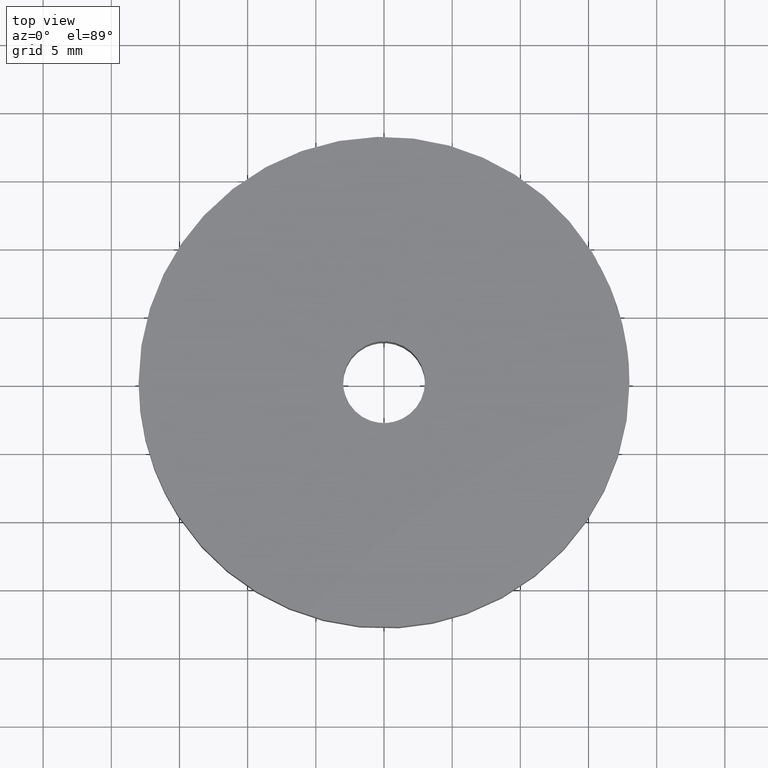
[diagram: clean part render]
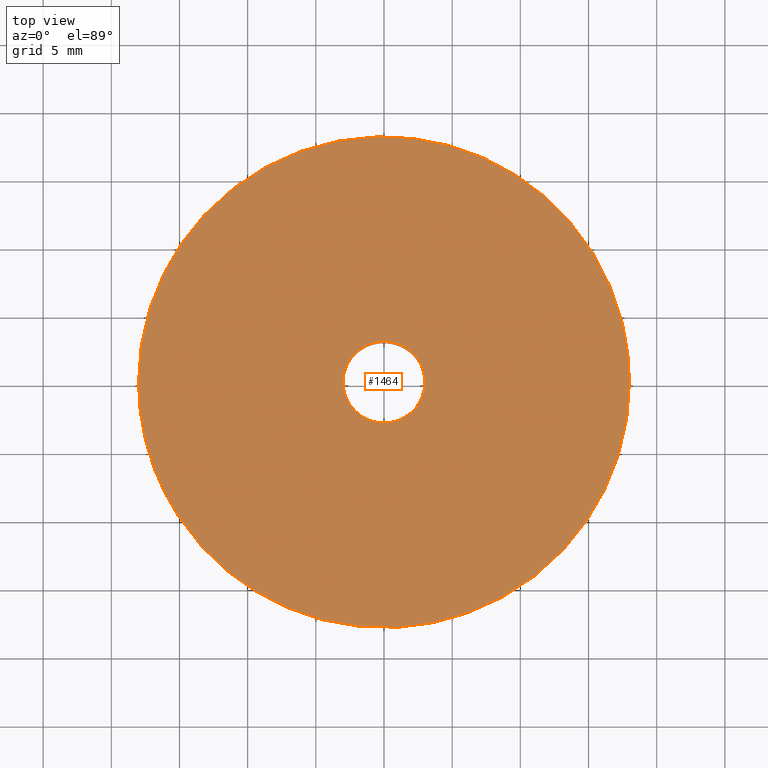
[diagram: same view with one face highlighted and labeled with its STEP entity id]
A machine part, top view. The second image highlights one B-rep face of the part: STEP entity #1464.
In plain terms, the highlighted face is a freeform B-spline surface patch.
Its self-contained STEP definition (entity closure, byte-faithful):
#536=CARTESIAN_POINT('',(-16.850587348847821,-6.329115735928706,17.0));
#537=VERTEX_POINT('',#536);
#543=CARTESIAN_POINT('',(-18.0,0.0,17.0));
#544=VERTEX_POINT('',#543);
#545=CARTESIAN_POINT('',(-16.850587348847817,-6.329115735928706,16.999999999999996));
#546=CARTESIAN_POINT('',(-17.999999999999996,-3.268928644053093,17.000000000000007));
#547=CARTESIAN_POINT('',(-18.0,0.0,17.0));
#555=(BOUNDED_CURVE()B_SPLINE_CURVE(2,(#545,#546,#547),.UNSPECIFIED.,.F.,.U.)B_SPLINE_CURVE_WITH_KNOTS((3,3),(0.940284244041880,1.0),.UNSPECIFIED.)CURVE()GEOMETRIC_REPRESENTATION_ITEM()RATIONAL_B_SPLINE_CURVE((0.893499644145449,0.930038640094190,1.0))REPRESENTATION_ITEM(''));
#556=EDGE_CURVE('',#537,#544,#555,.T.);
#558=CARTESIAN_POINT('',(18.0,0.0,17.0));
#559=VERTEX_POINT('',#558);
#560=CARTESIAN_POINT('',(-18.0,0.0,17.0));
#561=CARTESIAN_POINT('',(-18.000000000000007,18.000000000000007,17.000000000000007));
#562=CARTESIAN_POINT('',(0.0,18.0,17.0));
#563=CARTESIAN_POINT('',(18.000000000000007,18.000000000000007,17.000000000000007));
#564=CARTESIAN_POINT('',(18.0,0.0,17.0));
#572=(BOUNDED_CURVE()B_SPLINE_CURVE(2,(#560,#561,#562,#563,#564),.UNSPECIFIED.,.F.,.U.)B_SPLINE_CURVE_WITH_KNOTS((3,2,3),(0.0,0.250000000000000,0.500000000000000),.UNSPECIFIED.)CURVE()GEOMETRIC_REPRESENTATION_ITEM()RATIONAL_B_SPLINE_CURVE((1.0,0.707106781186547,1.0,0.707106781186547,1.0))REPRESENTATION_ITEM(''));
#573=EDGE_CURVE('',#544,#559,#572,.T.);
#575=CARTESIAN_POINT('',(1.098867361640900,-17.966426759973160,17.0));
#576=VERTEX_POINT('',#575);
#577=CARTESIAN_POINT('',(18.0,0.0,17.0));
#578=CARTESIAN_POINT('',(18.0,-16.932715200120182,16.999999999999996));
#579=CARTESIAN_POINT('',(1.098867361640900,-17.966426759973164,17.0));
#587=(BOUNDED_CURVE()B_SPLINE_CURVE(2,(#577,#578,#579),.UNSPECIFIED.,.F.,.U.)B_SPLINE_CURVE_WITH_KNOTS((3,3),(0.500000000000000,0.739333023226263),.UNSPECIFIED.)CURVE()GEOMETRIC_REPRESENTATION_ITEM()RATIONAL_B_SPLINE_CURVE((1.0,0.719603921835620,0.976072172374189))REPRESENTATION_ITEM(''));
#588=EDGE_CURVE('',#559,#576,#587,.T.);
#675=CARTESIAN_POINT('',(1.098867361640900,-17.966426759973164,17.0));
#676=CARTESIAN_POINT('',(0.549946555479049,-17.999999999999996,16.999999999999993));
#677=CARTESIAN_POINT('',(0.0,-18.0,17.0));
#678=CARTESIAN_POINT('',(-12.466978889469559,-17.999999999999996,17.000000000000007));
#679=CARTESIAN_POINT('',(-16.850587348847817,-6.329115735928706,16.999999999999996));
#687=(BOUNDED_CURVE()B_SPLINE_CURVE(2,(#675,#676,#677,#678,#679),.UNSPECIFIED.,.F.,.U.)B_SPLINE_CURVE_WITH_KNOTS((3,2,3),(0.739333023226263,0.750000000000000,0.940284244041880),.UNSPECIFIED.)CURVE()GEOMETRIC_REPRESENTATION_ITEM()RATIONAL_B_SPLINE_CURVE((0.976072172374189,0.987502859350927,1.0,0.777068141092357,0.893499644145449))REPRESENTATION_ITEM(''));
#688=EDGE_CURVE('',#576,#537,#687,.T.);
#716=CARTESIAN_POINT('',(-0.354102703998569,2.979028579087636,17.0));
#717=VERTEX_POINT('',#716);
#718=CARTESIAN_POINT('',(3.0,0.0,17.0));
#719=VERTEX_POINT('',#718);
#720=CARTESIAN_POINT('',(-0.354102703998569,2.979028579087636,17.0));
#721=CARTESIAN_POINT('',(-0.177672358984323,3.0,17.000000000000004));
#722=CARTESIAN_POINT('',(0.0,3.0,17.0));
#723=CARTESIAN_POINT('',(3.0,3.0,17.000000000000004));
#724=CARTESIAN_POINT('',(3.0,0.0,17.0));
#732=(BOUNDED_CURVE()B_SPLINE_CURVE(2,(#720,#721,#722,#723,#724),.UNSPECIFIED.,.F.,.U.)B_SPLINE_CURVE_WITH_KNOTS((3,2,3),(0.229562473512434,0.250000000000000,0.500000000000000),.UNSPECIFIED.)CURVE()GEOMETRIC_REPRESENTATION_ITEM()RATIONAL_B_SPLINE_CURVE((0.956026754181593,0.976055948329886,1.0,0.707106781186548,1.0))REPRESENTATION_ITEM(''));
#733=EDGE_CURVE('',#717,#719,#732,.T.);
#774=CARTESIAN_POINT('',(0.183145618665813,-2.994404395261855,17.0));
#775=VERTEX_POINT('',#774);
#781=CARTESIAN_POINT('',(3.0,0.0,17.0));
#782=CARTESIAN_POINT('',(3.000000000000001,-2.822118200601435,17.000000000000007));
#783=CARTESIAN_POINT('',(0.183145618665813,-2.994404395261855,16.999999999999996));
#791=(BOUNDED_CURVE()B_SPLINE_CURVE(2,(#781,#782,#783),.UNSPECIFIED.,.F.,.U.)B_SPLINE_CURVE_WITH_KNOTS((3,3),(0.500000000000000,0.739332962234911),.UNSPECIFIED.)CURVE()GEOMETRIC_REPRESENTATION_ITEM()RATIONAL_B_SPLINE_CURVE((1.0,0.719603993291434,0.976072041658075))REPRESENTATION_ITEM(''));
#792=EDGE_CURVE('',#719,#775,#791,.T.);
#815=CARTESIAN_POINT('',(-3.0,0.0,17.0));
#816=VERTEX_POINT('',#815);
#817=CARTESIAN_POINT('',(-3.0,0.0,17.0));
#818=CARTESIAN_POINT('',(-3.000000000000000,2.664523577803135,17.0));
#819=CARTESIAN_POINT('',(-0.354102703998569,2.979028579087637,16.999999999999996));
#827=(BOUNDED_CURVE()B_SPLINE_CURVE(2,(#817,#818,#819),.UNSPECIFIED.,.F.,.U.)B_SPLINE_CURVE_WITH_KNOTS((3,3),(0.0,0.229562473512434),.UNSPECIFIED.)CURVE()GEOMETRIC_REPRESENTATION_ITEM()RATIONAL_B_SPLINE_CURVE((1.0,0.731050832856661,0.956026754181594))REPRESENTATION_ITEM(''));
#828=EDGE_CURVE('',#816,#717,#827,.T.);
#830=CARTESIAN_POINT('',(0.183145618665813,-2.994404395261855,16.999999999999996));
#831=CARTESIAN_POINT('',(0.091658289957180,-3.000000000000000,16.999999999999996));
#832=CARTESIAN_POINT('',(0.0,-3.0,17.0));
#833=CARTESIAN_POINT('',(-3.0,-3.0,17.000000000000004));
#834=CARTESIAN_POINT('',(-3.0,0.0,17.0));
#842=(BOUNDED_CURVE()B_SPLINE_CURVE(2,(#830,#831,#832,#833,#834),.UNSPECIFIED.,.F.,.U.)B_SPLINE_CURVE_WITH_KNOTS((3,2,3),(0.739332962234910,0.750000000000000,1.0),.UNSPECIFIED.)CURVE()GEOMETRIC_REPRESENTATION_ITEM()RATIONAL_B_SPLINE_CURVE((0.976072041658075,0.987502787895113,1.0,0.707106781186548,1.0))REPRESENTATION_ITEM(''));
#843=EDGE_CURVE('',#775,#816,#842,.T.);
#1447=CARTESIAN_POINT('',(19.798199930225010,-19.794907696897390,17.0));
#1448=CARTESIAN_POINT('',(-19.798200895820258,-19.794907696897390,17.0));
#1449=CARTESIAN_POINT('',(19.798199930225010,19.798044272119402,17.0));
#1450=CARTESIAN_POINT('',(-19.798200895820258,19.798044272119402,17.0));
#1451=B_SPLINE_SURFACE_WITH_KNOTS('',1,1,((#1447,#1449),(#1448,#1450)),.UNSPECIFIED.,.F.,.F.,.U.,(2,2),(2,2),(0.0,39.596400826045269),(0.0,39.592951969016788),.UNSPECIFIED.);
#1452=ORIENTED_EDGE('',*,*,#556,.F.);
#1453=ORIENTED_EDGE('',*,*,#688,.F.);
#1454=ORIENTED_EDGE('',*,*,#588,.F.);
#1455=ORIENTED_EDGE('',*,*,#573,.F.);
#1456=EDGE_LOOP('',(#1452,#1453,#1454,#1455));
#1457=FACE_OUTER_BOUND('',#1456,.T.);
#1458=ORIENTED_EDGE('',*,*,#792,.T.);
#1459=ORIENTED_EDGE('',*,*,#843,.T.);
#1460=ORIENTED_EDGE('',*,*,#828,.T.);
#1461=ORIENTED_EDGE('',*,*,#733,.T.);
#1462=EDGE_LOOP('',(#1458,#1459,#1460,#1461));
#1463=FACE_BOUND('',#1462,.T.);
#1464=ADVANCED_FACE('',(#1457,#1463),#1451,.F.);